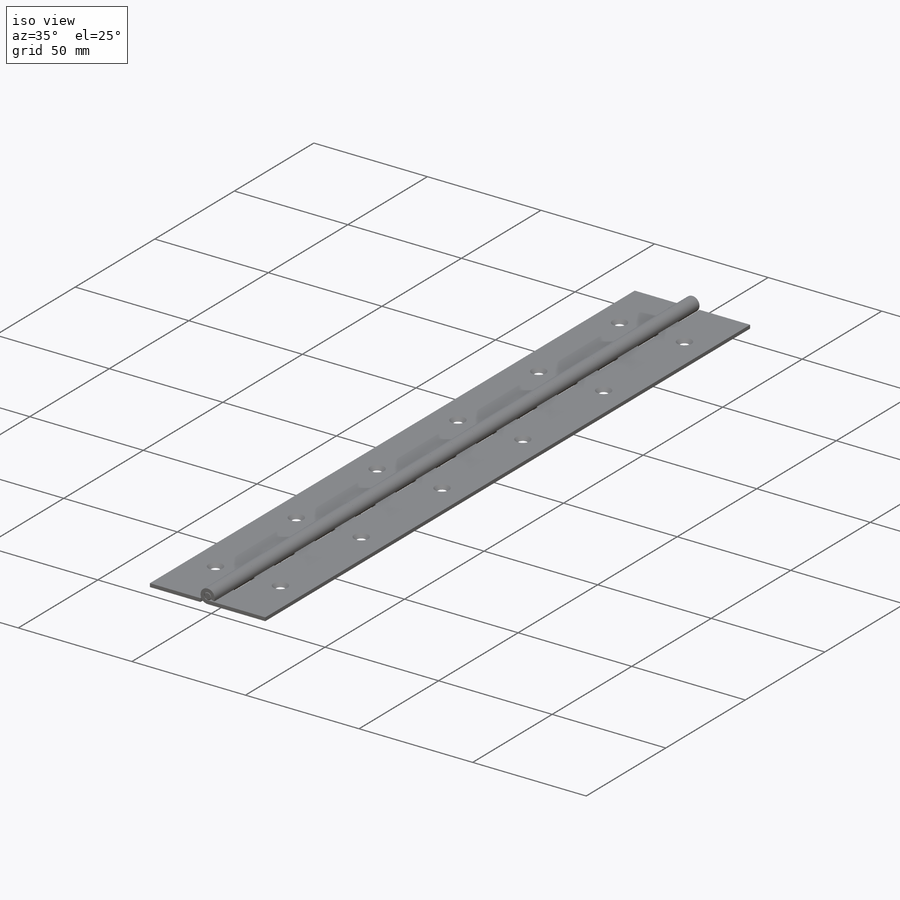
[diagram: iso view]
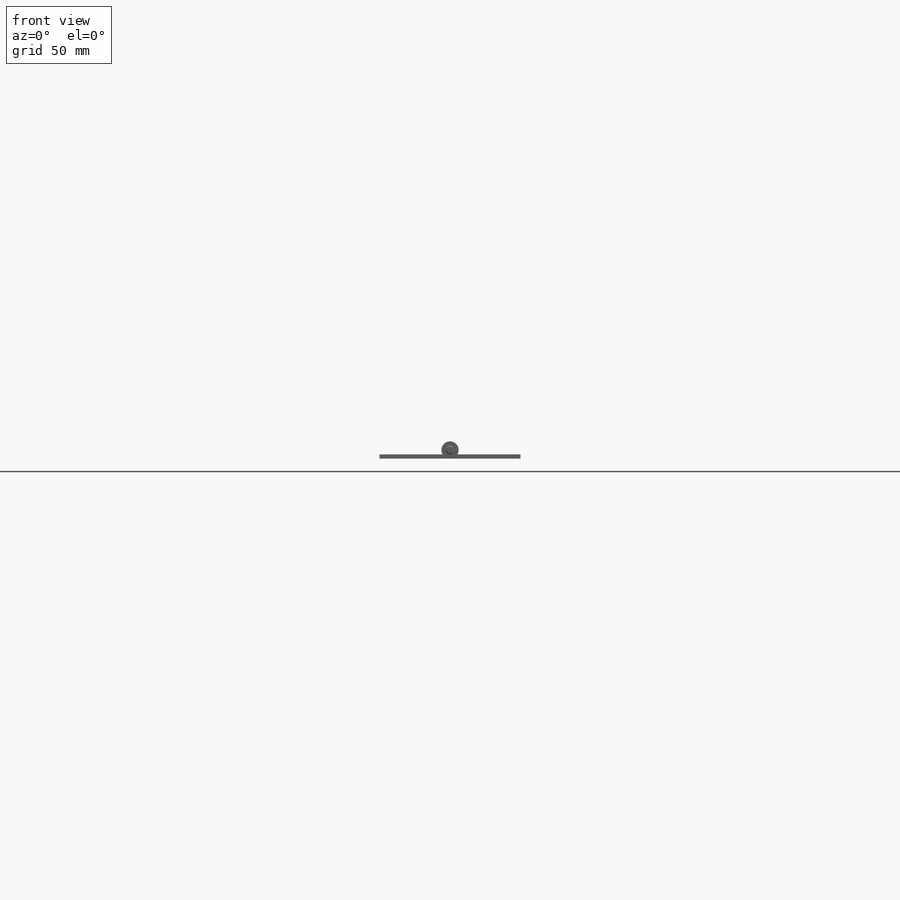
[diagram: front view]
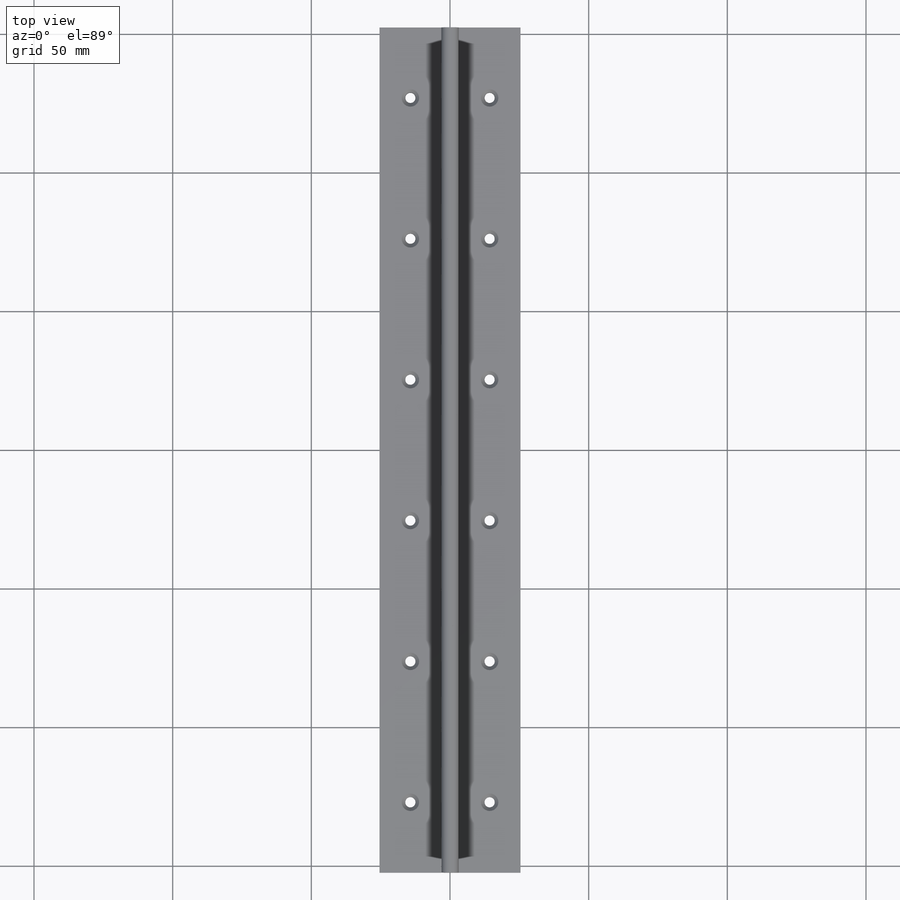
[diagram: top view]
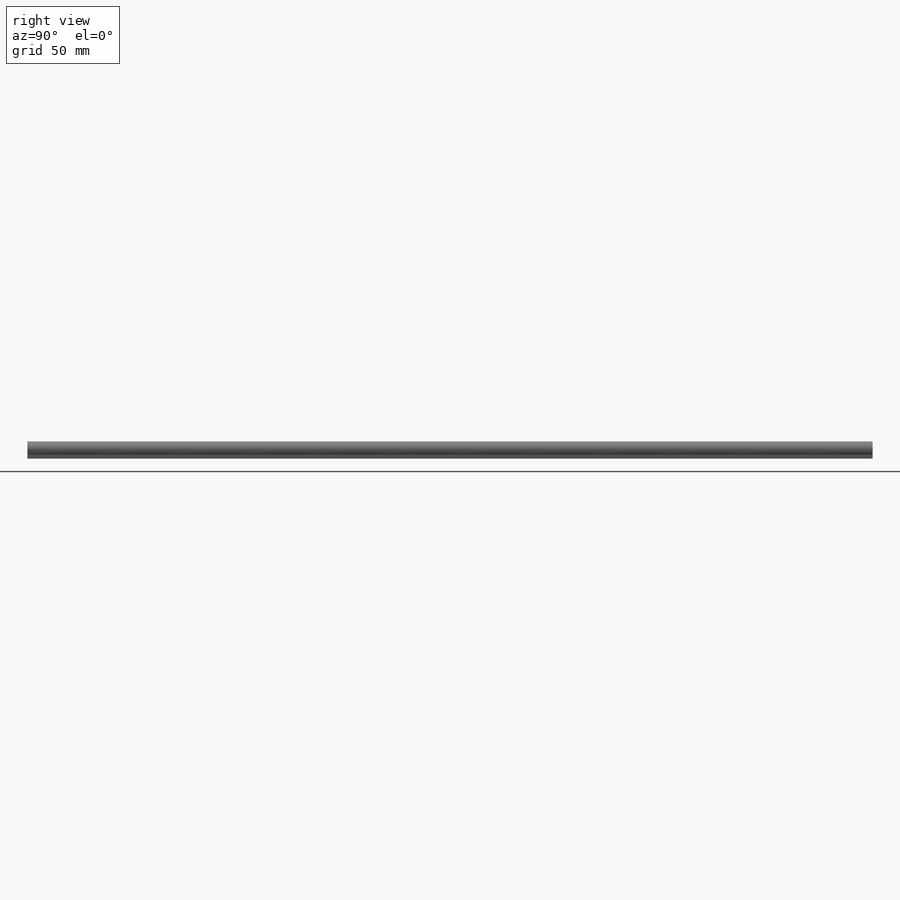
[diagram: right view]
SOLIDWORKS PART (.sldprt)
format: sldprt  version: not decoded by parser v0  size: 537,600 bytes
history: native  units: mm
features: sketch x10, extrude x4, pattern_linear x3, cut_extrude x2, material x1, mirror x1, chamfer x1, plane x1 (+12 scaffold rows collapsed)
feature tree (35):
  scaffold x12  (default folders/planes/origin — collapsed)
  material  "6061 Alloy"
  sketch  "Sketch1"  dims[c1.pin diameter=3.175mm c1.knuckle dia=6.223mm c1.leaf thickness=1.524mm c1.open width=50.8mm c1.D5=4.7625mm c2.D5=25.0deg c2.D6=~3.958253mm c3.D6=25.0deg]
  sketch  "Sketch2"
  extrude  "Extrude1"  Depth=304.8mm overall length=304.8mm
  sketch  "Sketch3"  dims[c1.knuckle length=12.7mm c1.D2=0.381mm c1.D3=0.635mm c1.D4=12.7mm c2.knuckle length=12.7mm]
  cut_extrude  "Cut-Extrude1"  Depth=50.8mm
  pattern_linear  "LPattern1"  Count1=12 Count2=1 Spacing1=25.4mm Spacing2=0.254mm
  sketch  "Sketch5"  dims[D1=50.8mm]
  extrude  "Extrude2"  Depth=12.7mm
  pattern_linear  "LPattern3"  Count1=12 Count2=1 Spacing1=25.4mm Spacing2=0.254mm
  sketch  "Sketch6"  dims[D1=0.0254mm]
  extrude  "Extrude5"  Depth=304.8mm
  sketch  "Sketch10"  dims[hole dia=3.6576mm hole off center=8.7376mm A=25.4mm D=11.1125mm]
  cut_extrude  "Cut-Extrude2"  [1 undecoded]
  pattern_linear  "LPattern4"  Count1=6 Count2=1 Spacing1=50.8mm Spacing2=0.254mm B=50.8mm
  mirror  "Mirror3"
  sketch  "Sketch7"
  extrude  "Extrude4"  Depth=304.8mm
  chamfer  "Chamfer1"  Distance=0.3175mm Angle=45deg
  sketch  "Sketch8"
  plane  "  "
  sketch  "Sketch9"
  sketch  "Sketch11"
decode coverage: 14 of 21 modeling features carry decoded parameters
note: ~ marks probable driven/reference dimensions
note: 1 parameter value undecoded
note: suppression state not decoded; provenance and decode notes live in map.json
